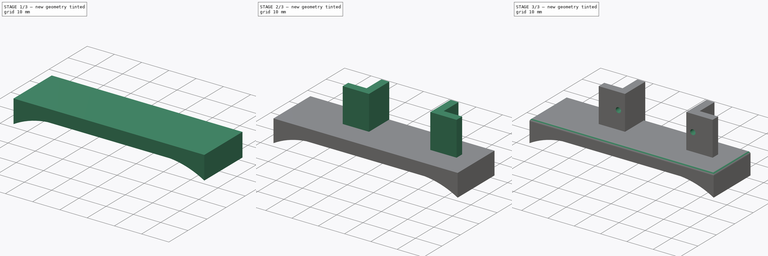
[diagram: build sequence overview — one tinted view per stage of 3, left to right]
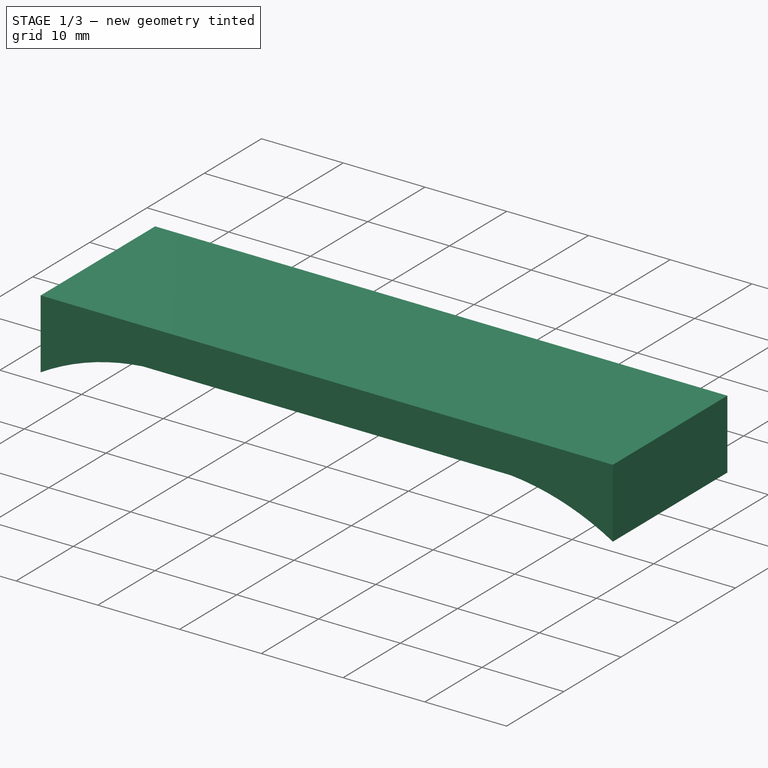
[diagram: stage 1 of 3 — iso view after this stage's code; geometry added in this stage tinted green]
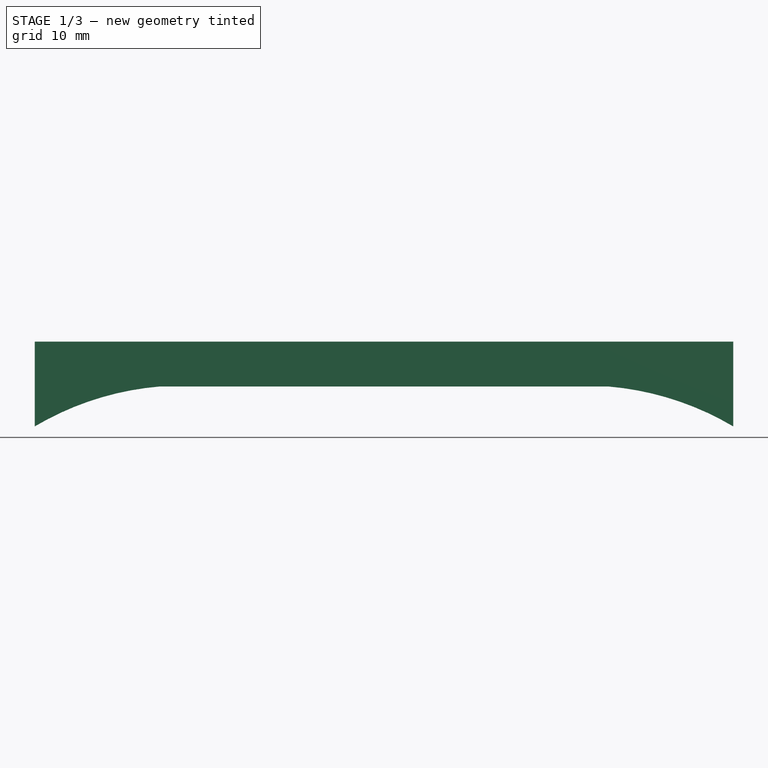
[diagram: stage 1 of 3 — front view after this stage's code; geometry added in this stage tinted green]
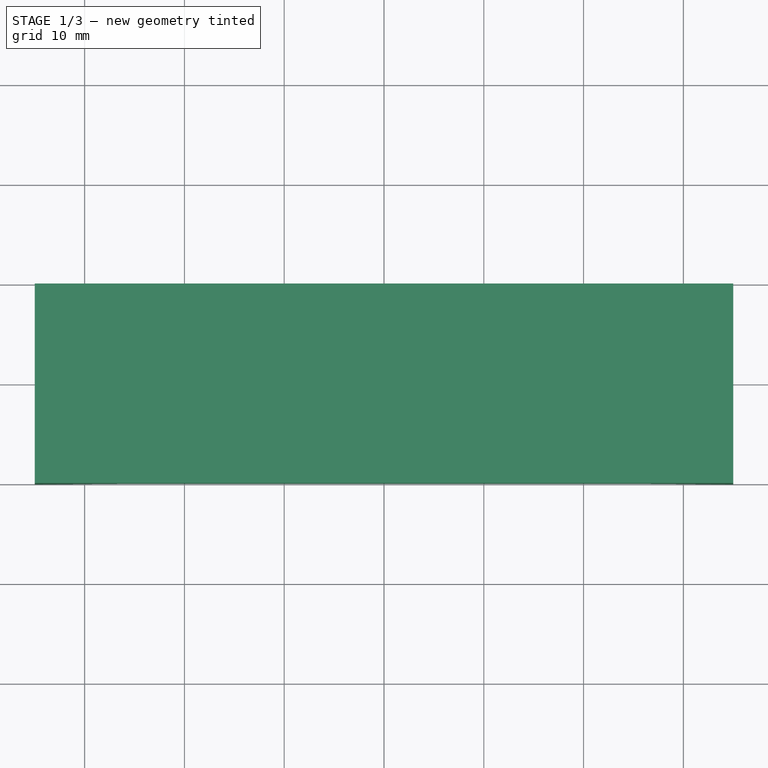
[diagram: stage 1 of 3 — top view after this stage's code; geometry added in this stage tinted green]
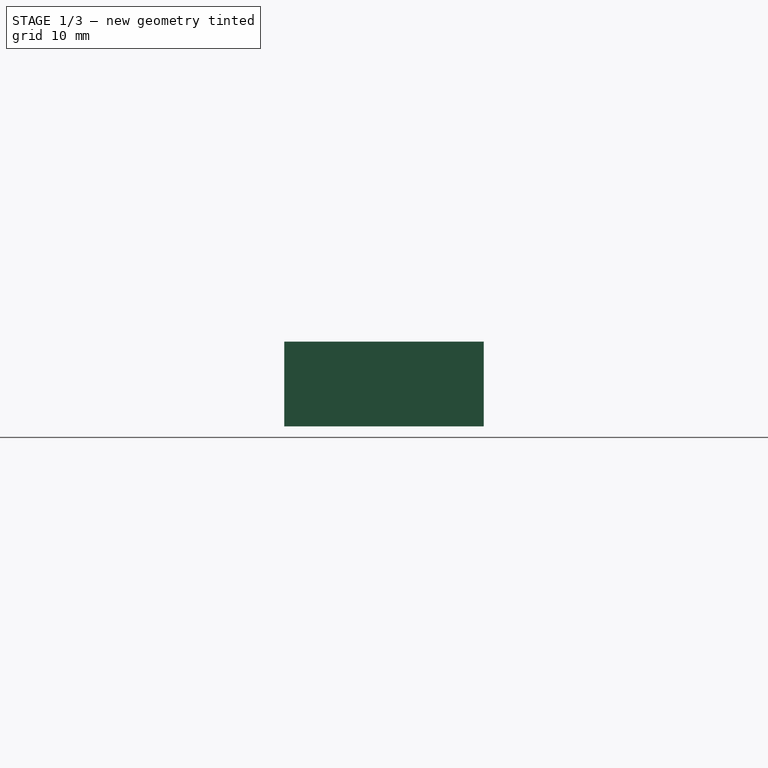
[diagram: stage 1 of 3 — right view after this stage's code; geometry added in this stage tinted green]
FCSTD DOCUMENT  (FreeCAD 0.18R14975 (Git))
Label: Motor_Support_TypeB
License: All rights reserved
LicenseURL: http://en.wikipedia.org/wiki/All_rights_reserved
objects: Sketcher::SketchObject×4, PartDesign::Pad×2, PartDesign::Pocket×2, PartDesign::Fillet×1, PartDesign::Body×1, App::Part×1
note: 14 computed .brp shape members not serialized (recipe doc carries the construction recipe); baked Part::Feature solids carry a one-line shape summary decoded from their .brp

FEATURE [Sketcher::SketchObject] Sketch  label="Base_Sketch"
  MapMode = 5
  Support = -> [XY_Plane001]
  sketch-geometry (4):
    g0: LineSegment StartX=-35 StartY=20 StartZ=0 EndX=35 EndY=20 EndZ=0
    g1: LineSegment StartX=35 StartY=20 StartZ=0 EndX=35 EndY=0 EndZ=0
    g2: LineSegment StartX=35 StartY=0 StartZ=0 EndX=-35 EndY=0 EndZ=0
    g3: LineSegment StartX=-35 StartY=0 StartZ=0 EndX=-35 EndY=20 EndZ=0
  constraints (12):
    c: Coincident(g0,g1)
    c: Coincident(g1,g2)
    c: Coincident(g2,g3)
    c: Coincident(g3,g0)
    c: Horizontal(g0)
    c: Horizontal(g2)
    c: Vertical(g1)
    c: Vertical(g3)
    c: DistanceX(g0,g-1) = 35
    c: DistanceX(g0,g0) = 70
    c: PointOnObject(g1,g-1)
    c: DistanceY(g-1,g0) = 20
FEATURE [PartDesign::Pad] Pad  label="Base"
  Length = 8.5
  Length2 = 100
  Profile = -> Sketch
  Type = 0
FEATURE [Sketcher::SketchObject] Sketch001  label="Curve_Sketch"
  ExternalGeometry = -> [Pad]
  MapMode = 5
  Placement = pos=(0,0,0) rot=(1,0,0;1.5708rad)
  Support = -> [Pad]
  sketch-geometry (4):
    g0: LineSegment StartX=-22.5 StartY=4 StartZ=0 EndX=22.5 EndY=4 EndZ=0
    g1: ArcOfCircle CenterX=-20 CenterY=-25.3438 CenterZ=0 NormalX=0 NormalY=0 NormalZ=1 AngleXU=0 Radius=29.4501 StartAngle=1.65579 EndAngle=2.10521
    g2: LineSegment StartX=-35 StartY=0 StartZ=0 EndX=35 EndY=0 EndZ=0
    g3: ArcOfCircle CenterX=20 CenterY=-25.3438 CenterZ=0 NormalX=0 NormalY=0 NormalZ=1 AngleXU=0 Radius=29.4501 StartAngle=1.03638 EndAngle=1.4858
  constraints (11):
    c: DistanceX(g0,g0) = 45
    c: Coincident(g1,g0)
    c: DistanceX(g1,g-1) = 20
    c: DistanceY(g-1,g0) = 4
    c: Symmetric(g0,g0,g-2)
    c: Coincident(g1,g-3)
    c: Coincident(g2,g1)
    c: Coincident(g2,g-4)
    c: Coincident(g0,g3)
    c: Coincident(g2,g3)
    c: Equal(g1,g3)
FEATURE [PartDesign::Pocket] Pocket  label="Curve"
  BaseFeature = -> Pad
  Length = 20
  Length2 = 100
  Profile = -> Sketch001
  Type = 0
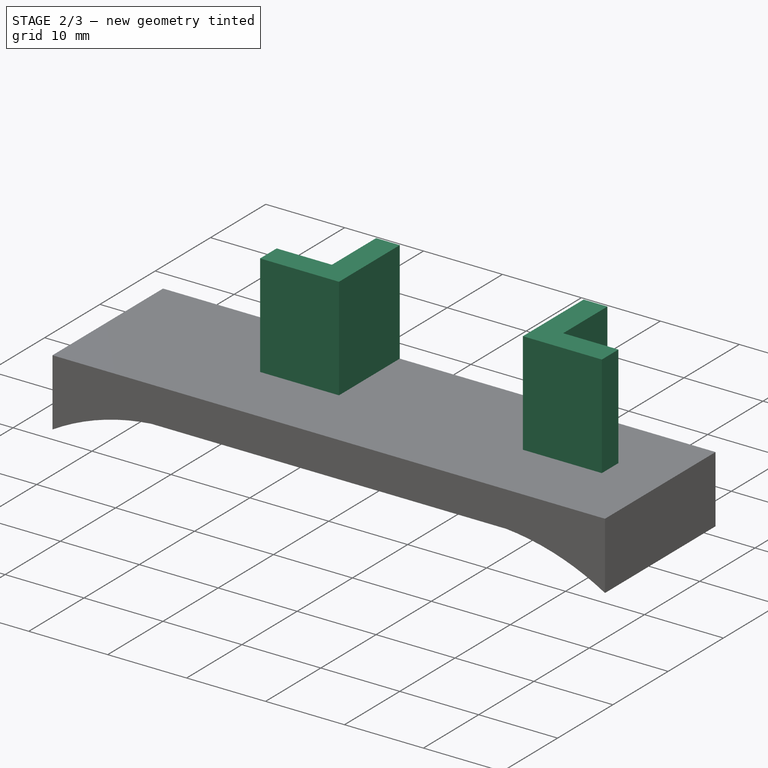
[diagram: stage 2 of 3 — iso view after this stage's code; geometry added in this stage tinted green]
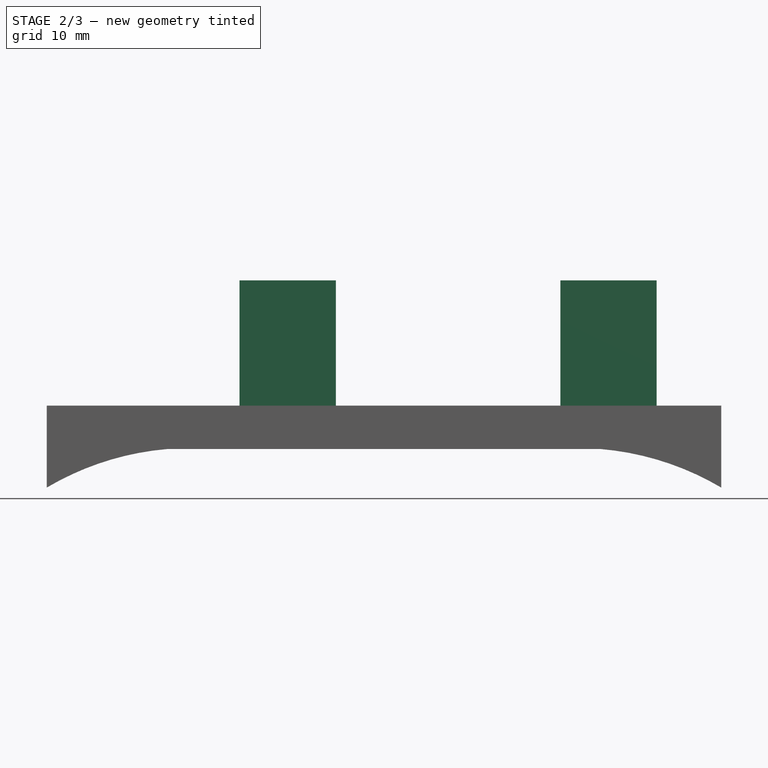
[diagram: stage 2 of 3 — front view after this stage's code; geometry added in this stage tinted green]
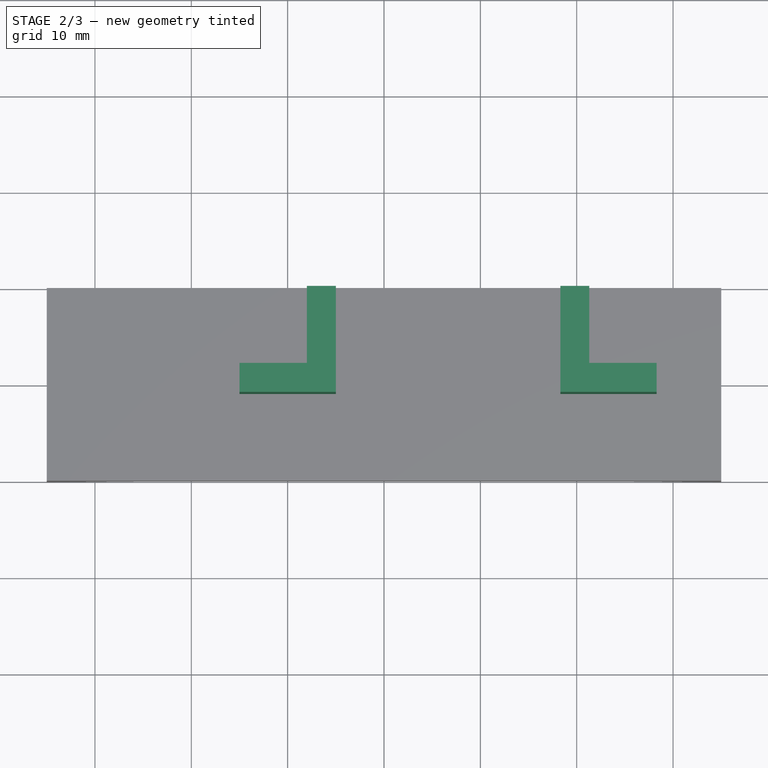
[diagram: stage 2 of 3 — top view after this stage's code; geometry added in this stage tinted green]
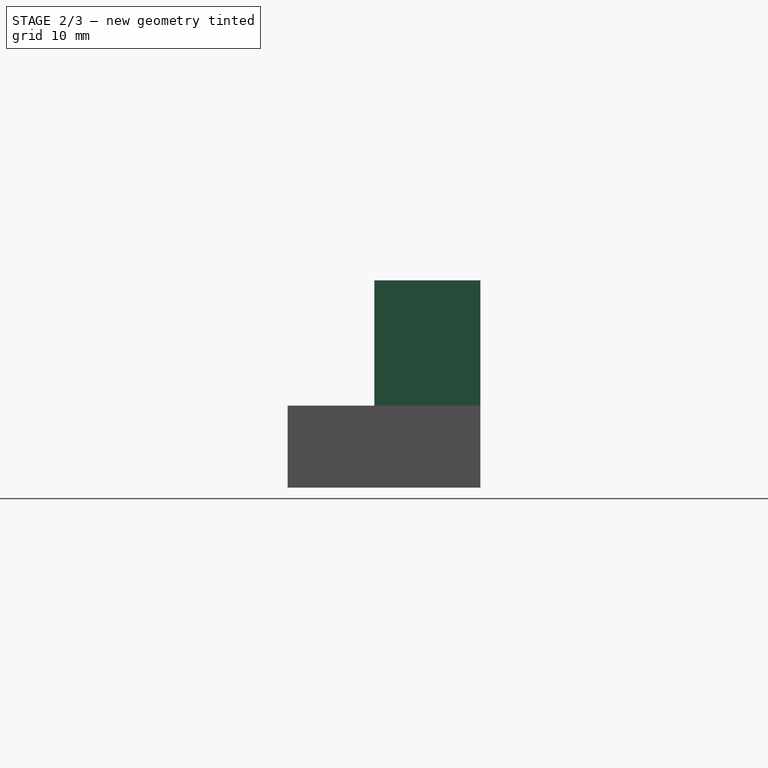
[diagram: stage 2 of 3 — right view after this stage's code; geometry added in this stage tinted green]
FEATURE [Sketcher::SketchObject] Sketch002  label="Supporter_Sketch"
  MapMode = 5
  Placement = pos=(0,0,8.5) rot=(0,0,1;0rad)
  Support = -> [Pocket]
  sketch-geometry (12):
    g0: LineSegment StartX=-5 StartY=9 StartZ=0 EndX=-15 EndY=9 EndZ=0
    g1: LineSegment StartX=-15 StartY=9 StartZ=0 EndX=-15 EndY=12 EndZ=0
    g2: LineSegment StartX=-15 StartY=12 StartZ=0 EndX=-8 EndY=12 EndZ=0
    g3: LineSegment StartX=-8 StartY=12 StartZ=0 EndX=-8 EndY=20 EndZ=0
    g4: LineSegment StartX=-8 StartY=20 StartZ=0 EndX=-5 EndY=20 EndZ=0
    g5: LineSegment StartX=-5 StartY=20 StartZ=0 EndX=-5 EndY=9 EndZ=0
    g6: LineSegment StartX=18.3 StartY=9 StartZ=0 EndX=28.3 EndY=9 EndZ=0
    g7: LineSegment StartX=28.3 StartY=9 StartZ=0 EndX=28.3 EndY=12 EndZ=0
    g8: LineSegment StartX=28.3 StartY=12 StartZ=0 EndX=21.3 EndY=12 EndZ=0
    g9: LineSegment StartX=21.3 StartY=12 StartZ=0 EndX=21.3 EndY=20 EndZ=0
    g10: LineSegment StartX=21.3 StartY=20 StartZ=0 EndX=18.3 EndY=20 EndZ=0
    g11: LineSegment StartX=18.3 StartY=20 StartZ=0 EndX=18.3 EndY=9 EndZ=0
  constraints (36):
    c: Horizontal(g0)
    c: Coincident(g0,g1)
    c: Vertical(g1)
    c: Coincident(g1,g2)
    c: Horizontal(g2)
    c: Coincident(g2,g3)
    c: Vertical(g3)
    c: Coincident(g3,g4)
    c: Coincident(g4,g5)
    c: Vertical(g5)
    c: Coincident(g0,g5)
    c: DistanceY(g-1,g0) = 9
    c: DistanceY(g0,g1) = 3
    c: DistanceX(g4,g-1) = 5
    c: DistanceX(g3,g4) = 3
    c: DistanceY(g-1,g3) = 20
    c: Horizontal(g4)
    c: Horizontal(g6)
    c: Coincident(g6,g7)
    c: Vertical(g7)
    c: Coincident(g7,g8)
    c: Horizontal(g8)
    c: Coincident(g8,g9)
    c: Vertical(g9)
    c: Coincident(g9,g10)
    c: Coincident(g10,g11)
    c: Vertical(g11)
    c: Coincident(g6,g11)
    c: Horizontal(g10)
    c: DistanceX(g10,g9) = 3
    c: DistanceX(g10,g7) = 10
    c: DistanceX(g4,g10) = 23.3
    c: DistanceY(g6,g7) = 3
    c: DistanceY(g-1,g9) = 20
    c: DistanceY(g-1,g6) = 9
    c: DistanceX(g0,g0) = 10
FEATURE [PartDesign::Pad] Pad001
  BaseFeature = -> Pocket
  Length = 13
  Length2 = 100
  Profile = -> Sketch002
  Type = 0
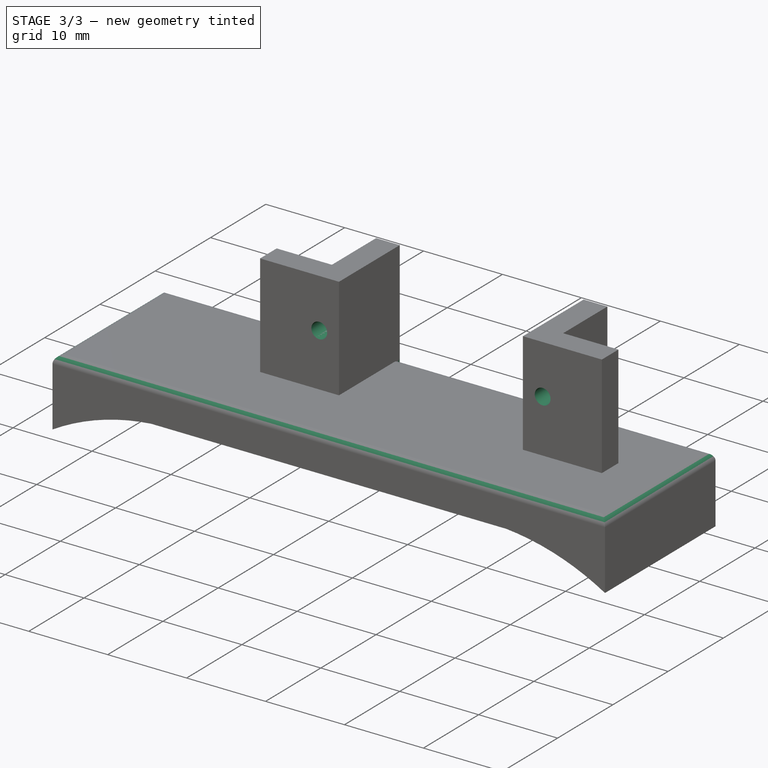
[diagram: stage 3 of 3 — iso view after this stage's code; geometry added in this stage tinted green]
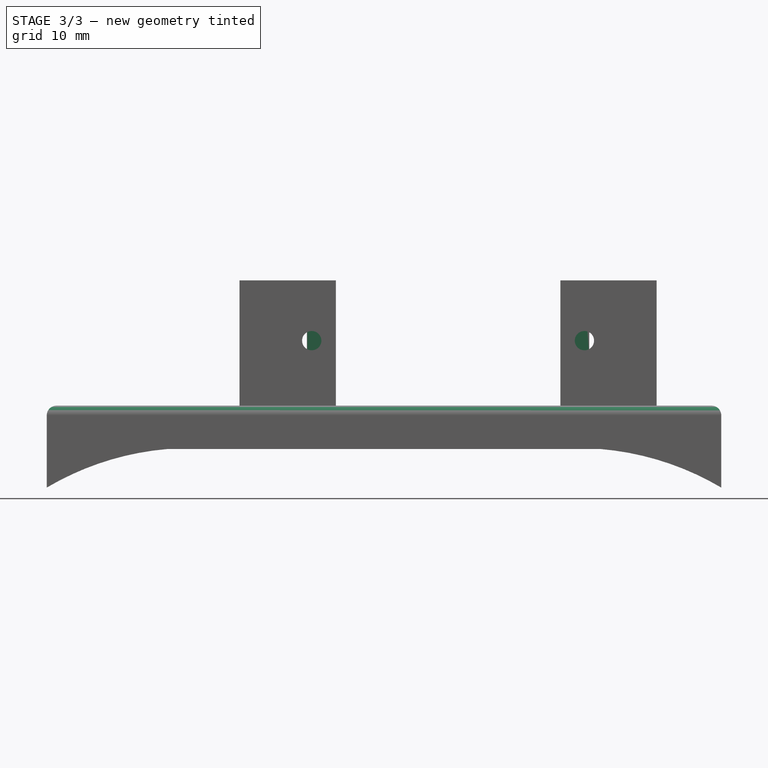
[diagram: stage 3 of 3 — front view after this stage's code; geometry added in this stage tinted green]
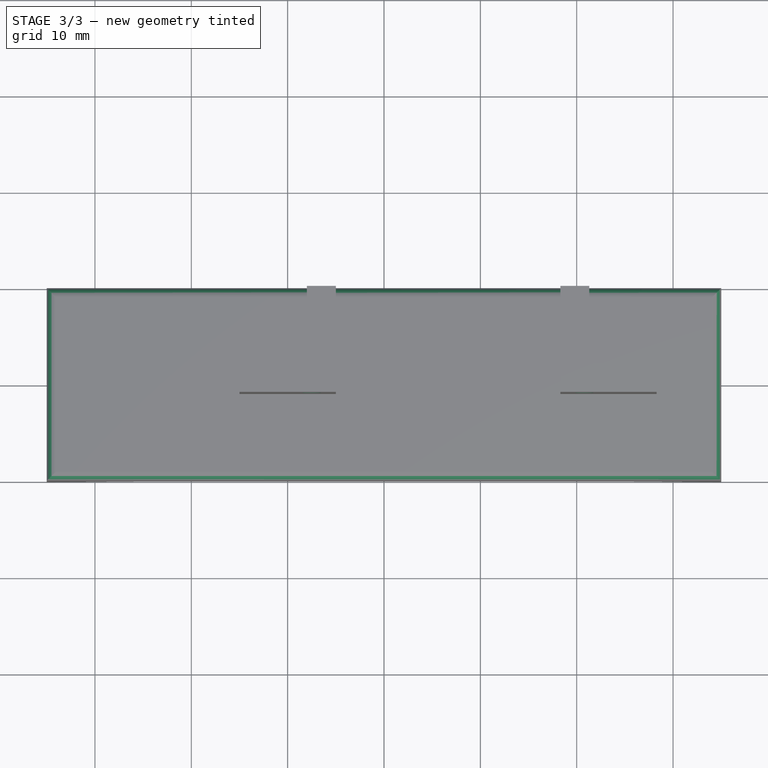
[diagram: stage 3 of 3 — top view after this stage's code; geometry added in this stage tinted green]
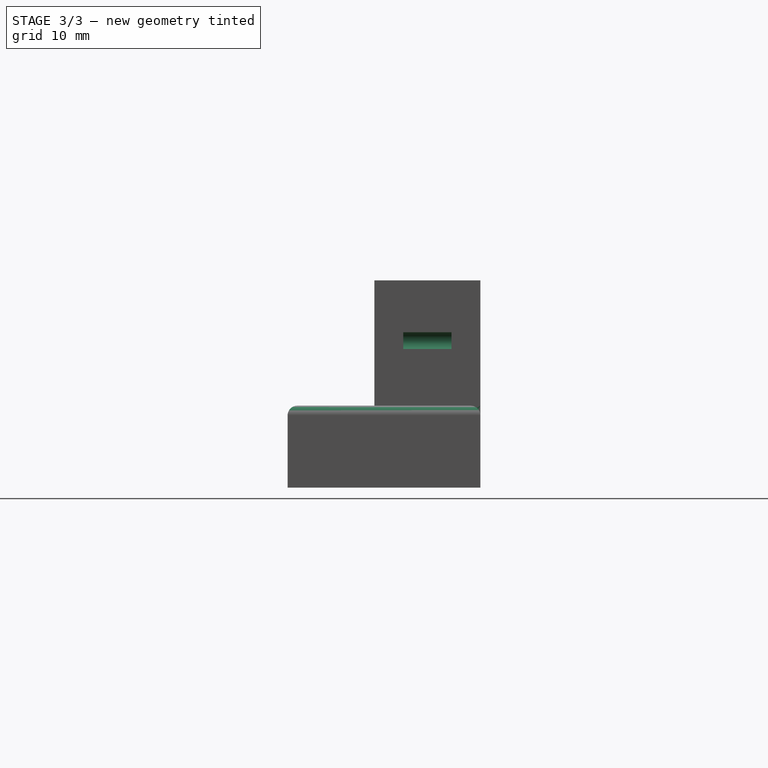
[diagram: stage 3 of 3 — right view after this stage's code; geometry added in this stage tinted green]
FEATURE [Sketcher::SketchObject] Sketch003  label="Bolt_Sketch"
  MapMode = 5
  Placement = pos=(0,9,0) rot=(1,0,0;1.5708rad)
  Support = -> [Pad001]
  sketch-geometry (2):
    g0: Circle CenterX=-7.5 CenterY=15.25 CenterZ=0 NormalX=0 NormalY=0 NormalZ=1 AngleXU=0 Radius=1
    g1: Circle CenterX=20.8 CenterY=15.25 CenterZ=0 NormalX=0 NormalY=0 NormalZ=1 AngleXU=0 Radius=1
  constraints (6):
    c: Radius(g0) = 1
    c: Equal(g0,g1)
    c: DistanceX(g0,g-1) = 7.5
    c: DistanceX(g-1,g1) = 20.8
    c: DistanceY(g-1,g1) = 15.25
    c: DistanceY(g-1,g0) = 15.25
FEATURE [PartDesign::Pocket] Pocket001
  BaseFeature = -> Pad001
  Length = 8
  Length2 = 100
  Profile = -> Sketch003
  Type = 0
FEATURE [PartDesign::Fillet] Fillet
  Base = -> Pocket001 [Edge14,Edge20,Edge10,Edge22,Edge18,Edge17]
  BaseFeature = -> Pocket001
  Radius = 1
FEATURE [PartDesign::Body] PocketBody
  Group = -> [Sketch,Pad,Sketch001,Pocket,Sketch003,Sketch002,Pad001,Pocket001,Fillet]
  Origin = -> Origin001
  Tip = -> Fillet
FEATURE [App::Part] Part
  Group = -> [PocketBody]
  License = CC BY 3.0
  LicenseURL = http://creativecommons.org/licenses/by/3.0/
  Origin = -> Origin
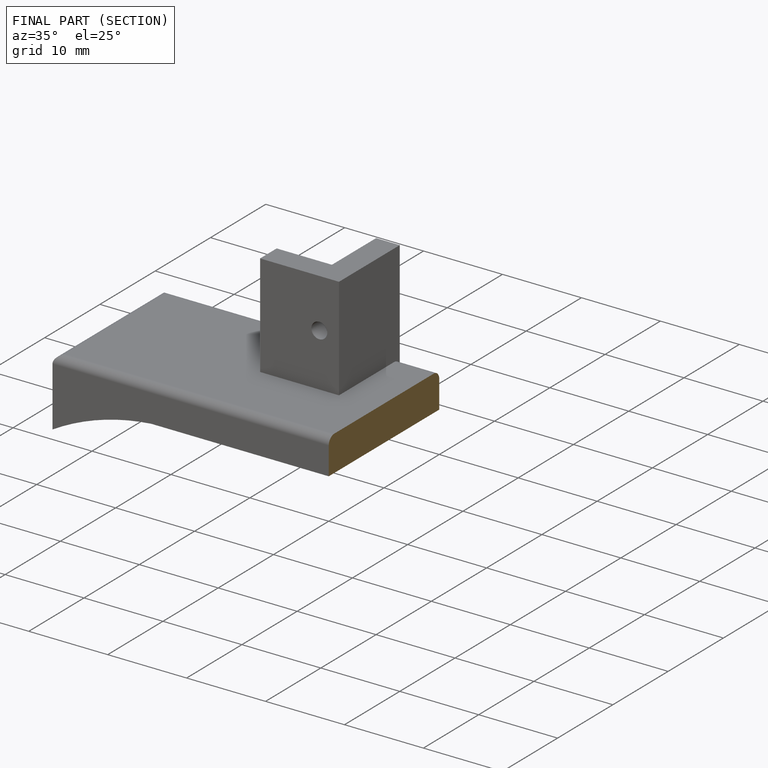
[diagram: finished part — half-section view (interior)]
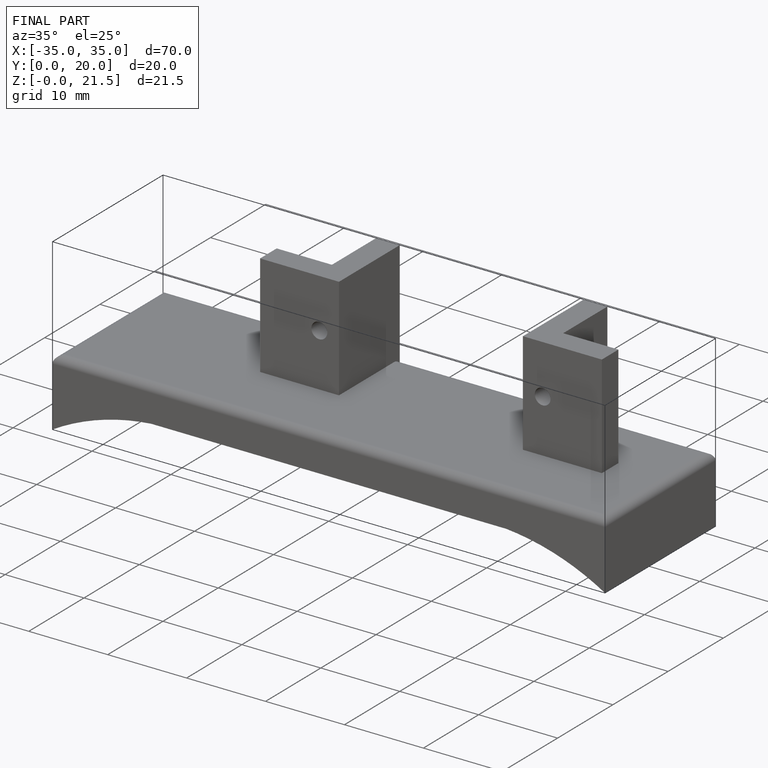
[diagram: finished part — iso view with bounding-box wireframe]
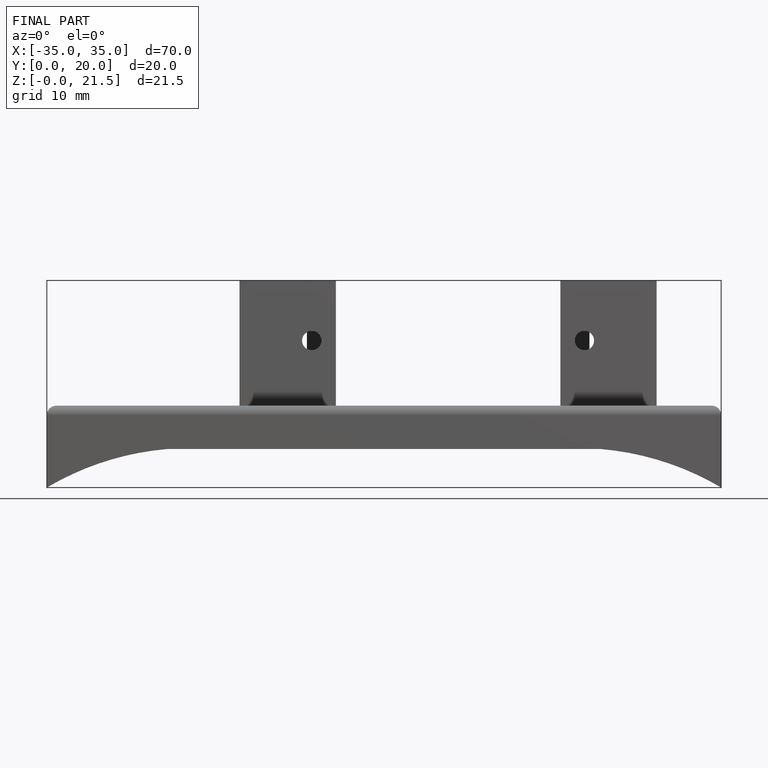
[diagram: finished part — front view with bounding-box wireframe]
